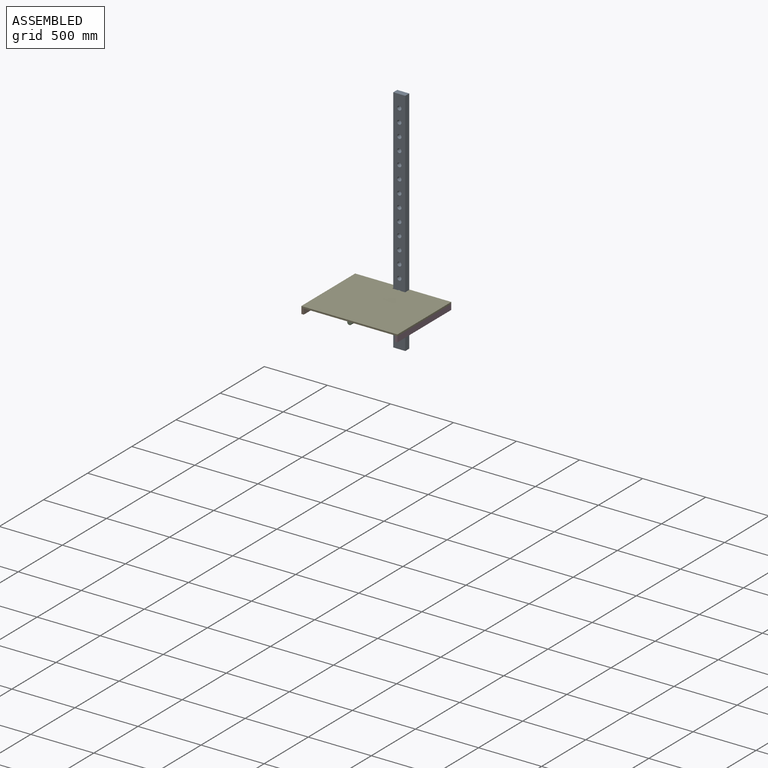
[diagram: assembled view]
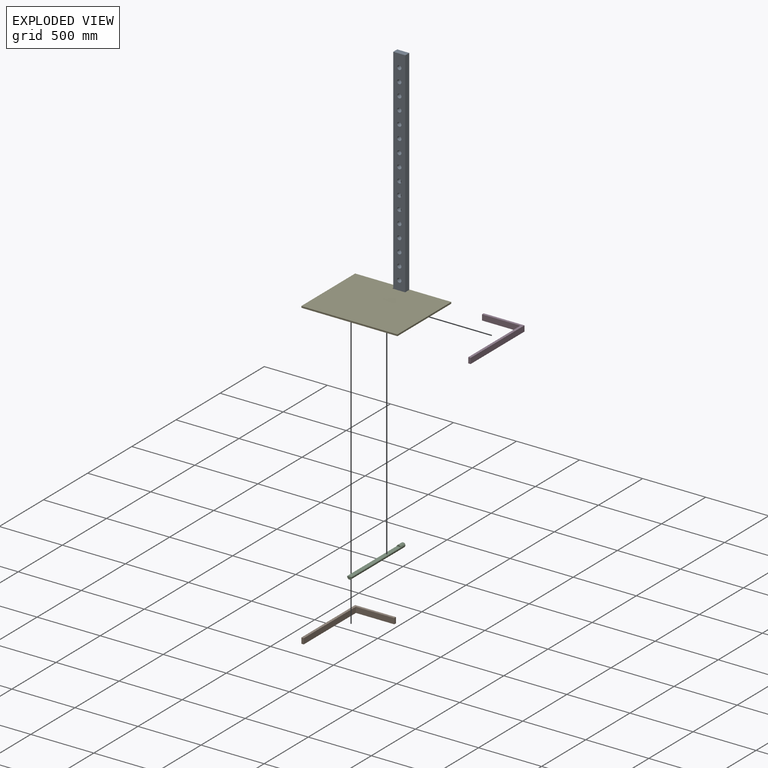
[diagram: exploded view]
GUIDED TOUR — MATED ASSEMBLY (Onshape document 30f6761c4bdb705095dee344, AutoMate assembly 30f6761c4bdb705095dee344_776e1c1512a23b6805736637_3fd992d2d86d7fd99f0343cf_default)

This assembly has 5 components, labeled P0..P4 below (a component is one placed occurrence of a part; the same part can appear more than once), held together by 11 mates. A mate is a constraint between two components; its type names the relative motion it leaves free:
  CYLINDRICAL — leaves both rotation about and translation along the listed axis free,
  PLANAR — leaves sliding in the plane through the listed point (normal = the listed direction) and rotation about that normal free.
Axis/direction vectors are unit vectors and 'through' points are millimeter coordinates, both in the assembly's world frame.

MATES
  1. PLANAR "Planar 2": P2 <-> P4, direction (0.000, 1.000, 0.000) through (-940.02, 203.75, 541.32) mm
  2. PLANAR "Planar 8": P4 <-> P1, direction (0.000, 0.000, -1.000) through (-940.02, -104.19, 546.08) mm
  3. PLANAR "Planar 11": P4 <-> P3, direction (1.000, 0.000, 0.000) through (-559.02, -101.05, 552.43) mm
  4. PLANAR "Planar 1": P4 <-> P2, direction (0.000, 0.000, -1.000) through (-940.02, -104.19, 546.08) mm
  5. PLANAR "Planar 4": P2 <-> P0, direction (0.000, 1.000, 0.000) through (-940.02, 203.75, 541.32) mm
  6. PLANAR "Planar 6": P0 <-> P1, direction (0.000, 1.000, 0.000) through (-940.02, 203.75, 947.72) mm
  7. PLANAR "Planar 10": P3 <-> P0, direction (0.000, 1.000, 0.000) through (-720.95, 203.75, 523.86) mm
  8. CYLINDRICAL "Cylindrical 1": P2 <-> P0, axis (0.000, 1.000, 0.000) through (-940.02, -101.05, 541.32) mm
  9. PLANAR "Planar 12": P1 <-> P4, direction (-1.000, 0.000, 0.000) through (-1321.02, -101.05, 523.86) mm
  10. PLANAR "Planar 5": P0 <-> P4, direction (-1.000, 0.000, 0.000) through (-987.65, 181.52, 1049.32) mm
  11. PLANAR "Planar 9": P3 <-> P4, direction (0.000, 0.000, 1.000) through (-622.52, -2.63, 546.08) mm

ASSEMBLY ORDER
  1. P4 — the base component [order verified]
  2. P2 [order verified]
  3. P0 [order verified]
  4. P1 [order verified]
  5. P3 [order verified]
Order-tag legend:
  [order verified] — this step's position reverses a verified removal order: the component was checked to insert without passing through the ones already placed.

Of the 5 components, 1 carries the full construction recipe — the FeatureScript program that regenerates the part's solid from scratch; the rest are supplied as boundary geometry only.
Each toured component is shown spotlighted twice — in the assembled view, then in the exploded view, where a leader line traces a displaced component back to its assembled socket (saturated green if recipe-attached, orange if geometry-only; every other component desaturated gray) — followed by its recipe or geometry summary and the mates that hold it.
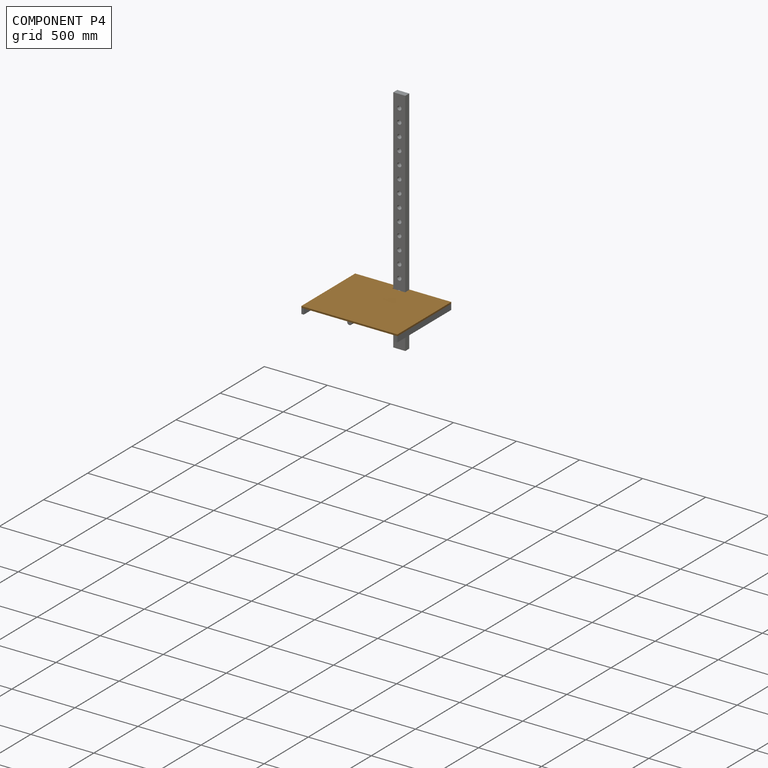
[diagram: component P4 — assembled]
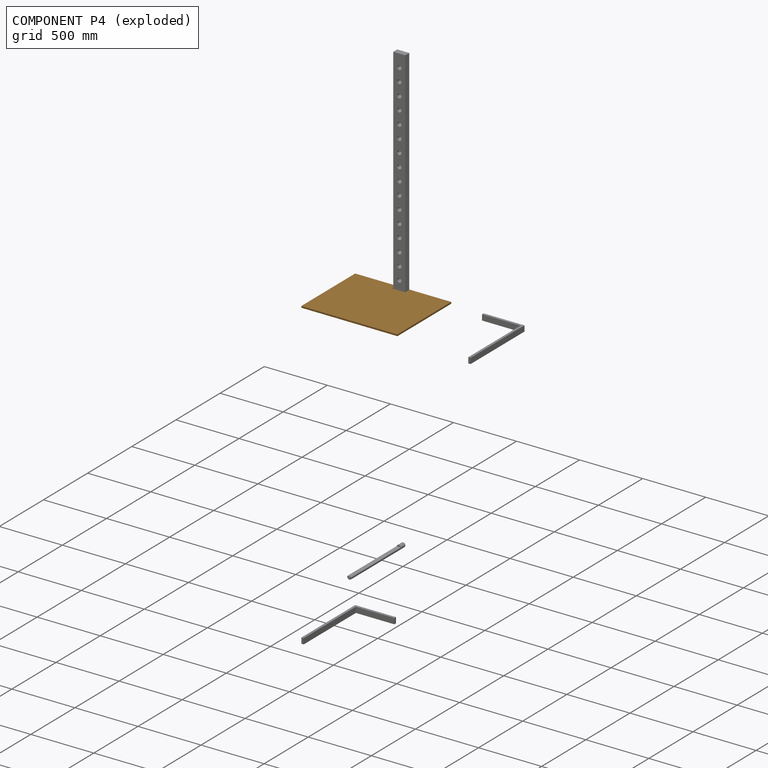
[diagram: component P4 — exploded]
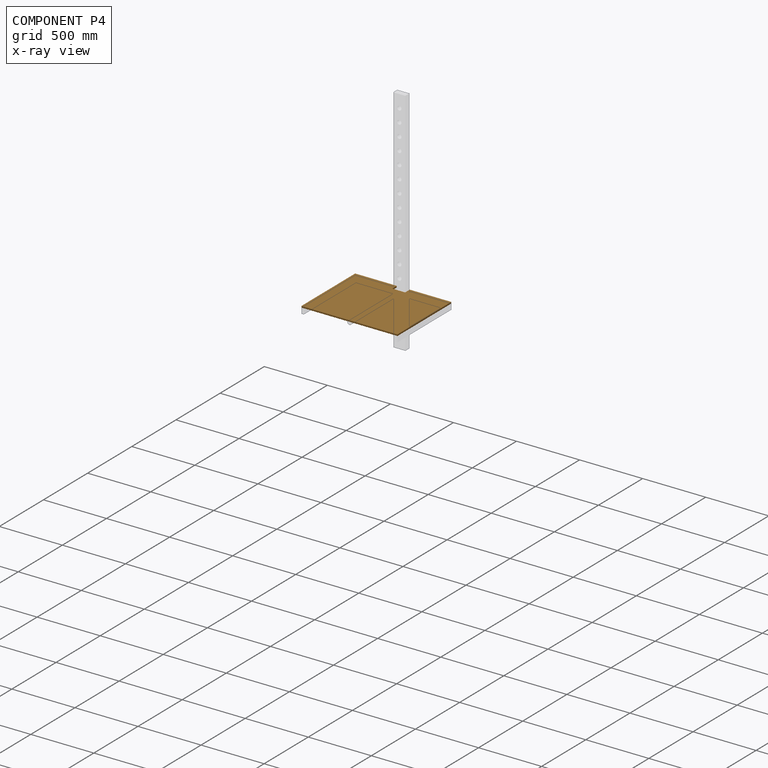
[diagram: component P4 — x-ray view]
COMPONENT P4 — geometry summary (no construction recipe available for this part):
  bounding box: 762.0 x 609.6 x 12.7 mm
  B-rep topology: 1 solid, 10 faces, 48 edges
  volume: 5833795 mm^3 (99% of its bounding box)
  symmetry: 2-fold rotationally symmetric about the y axis; mirror-symmetric across its x mid-plane, z mid-plane
Held by: PLANAR mate "Planar 2" to P2; PLANAR mate "Planar 8" to P1; PLANAR mate "Planar 11" to P3; PLANAR mate "Planar 1" to P2; PLANAR mate "Planar 12" to P1; PLANAR mate "Planar 5" to P0; PLANAR mate "Planar 9" to P3.
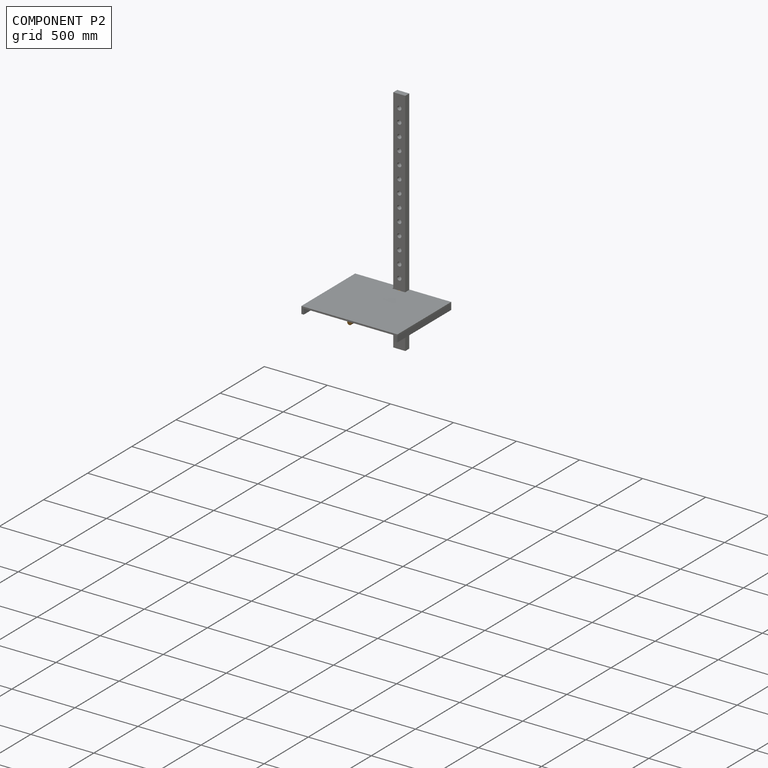
[diagram: component P2 — assembled]
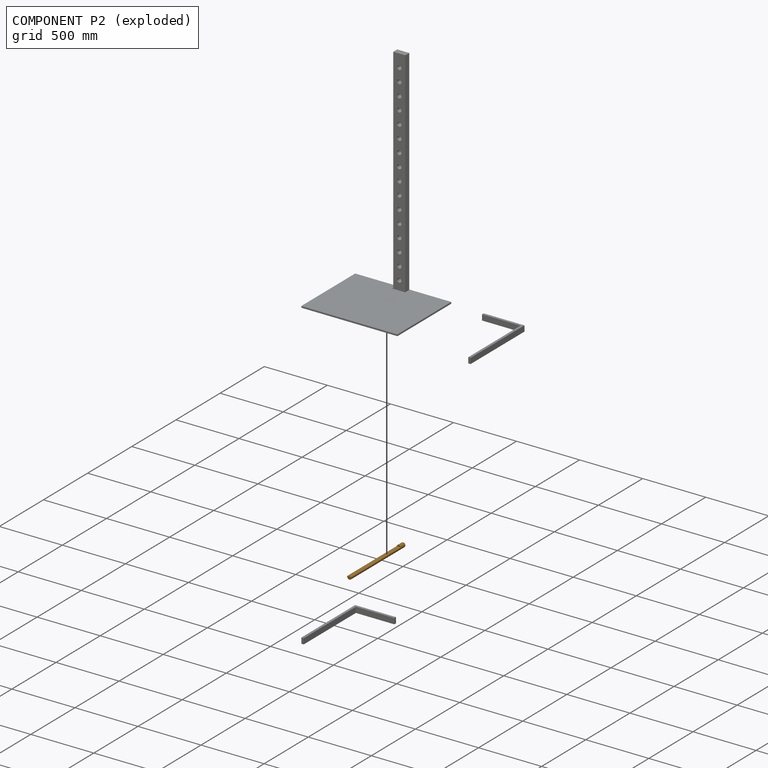
[diagram: component P2 — exploded]
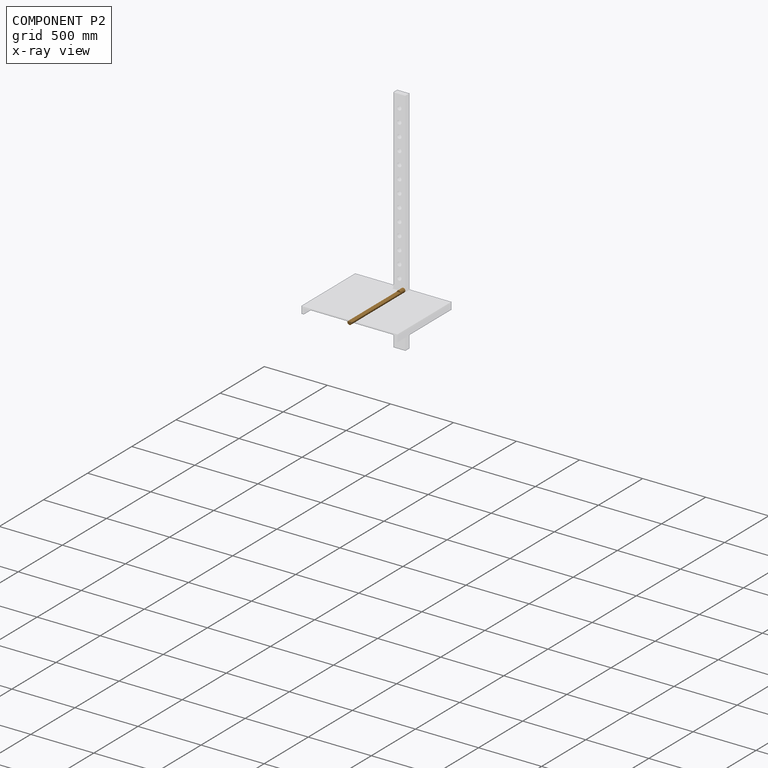
[diagram: component P2 — x-ray view]
COMPONENT P2 — geometry summary (no construction recipe available for this part):
  bounding box: 609.6 x 34.9 x 34.9 mm
  B-rep topology: 1 solid, 5 faces, 18 edges
  volume: 408110 mm^3 (55% of its bounding box)
  symmetry: mirror-symmetric across its x mid-plane
Held by: PLANAR mate "Planar 2" to P4; PLANAR mate "Planar 1" to P4; PLANAR mate "Planar 4" to P0; CYLINDRICAL mate "Cylindrical 1" to P0.
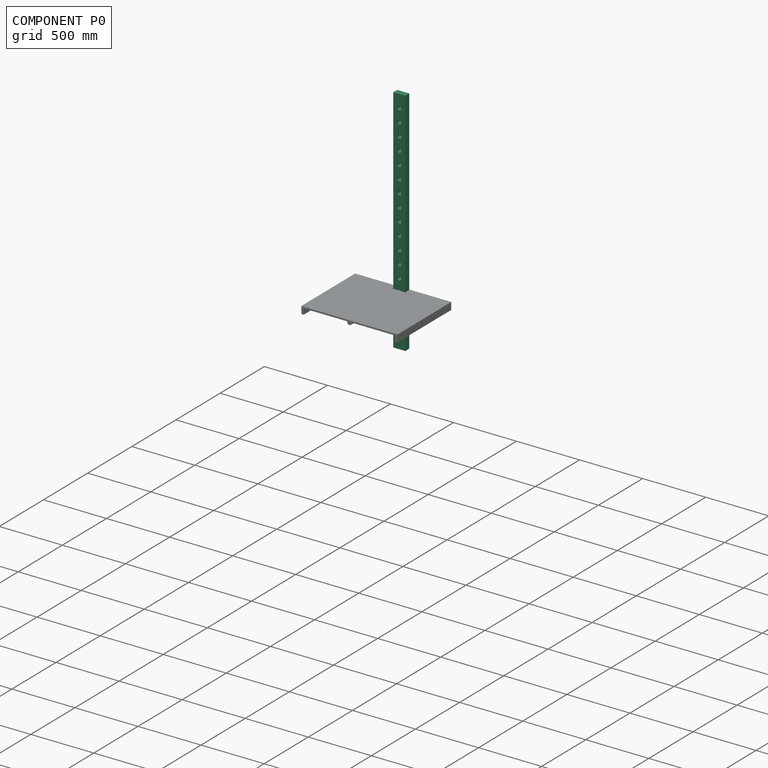
[diagram: component P0 — assembled]
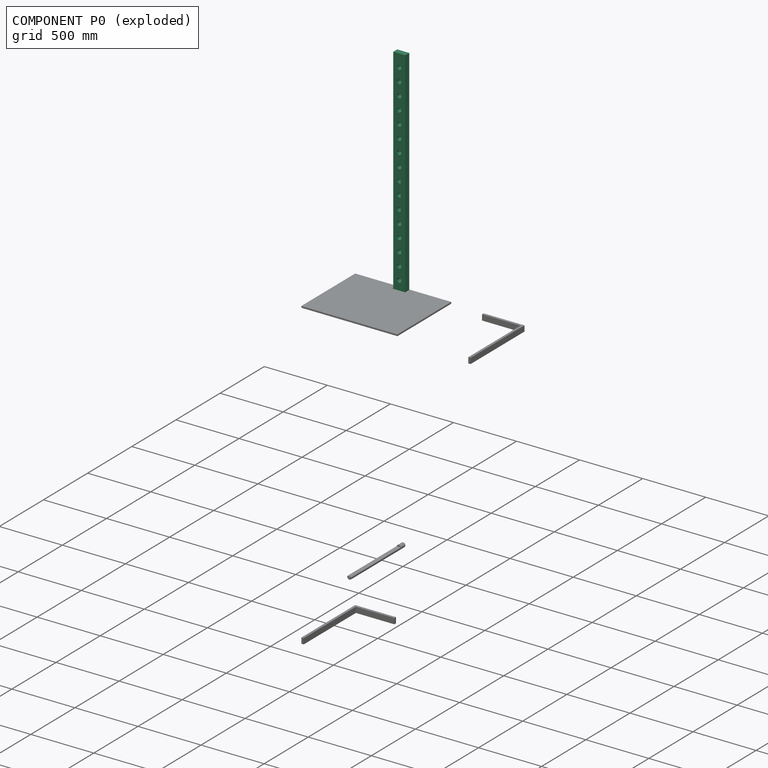
[diagram: component P0 — exploded]
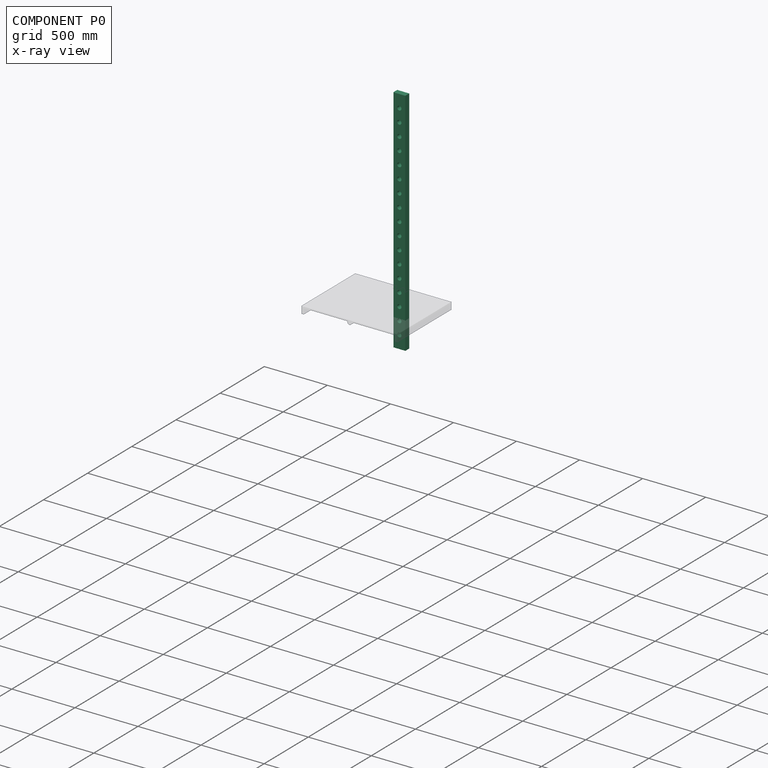
[diagram: component P0 — x-ray view]
COMPONENT P0 — recipe-attached (CADFS 00497379, mesh-verified: the recipe's output STEP matches this component's geometry to below the mesh-comparison resolution (tessellation chordal tolerance ~2.75 mm)).
Held by: PLANAR mate "Planar 4" to P2; PLANAR mate "Planar 6" to P1; PLANAR mate "Planar 10" to P3; CYLINDRICAL mate "Cylindrical 1" to P2; PLANAR mate "Planar 5" to P4.
Construction recipe (FeatureScript — the CAD program that rebuilds this solid; sketch coordinates are in the units given by the * unit suffixes, e.g. mm):

FeatureScript 1511;
import(path : "onshape/std/geometry.fs", version : "1511.0");
import(path : "onshape/std/common.fs", version : "1511.0");
const mm = millimeter;
const VERTEX = EntityType.VERTEX;
const EDGE = EntityType.EDGE;
const FACE = EntityType.FACE;
const BODY = EntityType.BODY;
function v(x, y){return vector(x, y);}
function OD(order){return orderDisambiguation(order);}
function OSD(set){return originalSetDisambiguation(set);}
function TD(topology){return topologyDisambiguation(topology);}
function TDD(query){return trueDependencyDisambiguation(query);}
function sQuery(a, b, c) {return sketchEntityQuery(a, b, c);}

annotation { "Feature Type Name" : "Feature", "Feature Type Description" : "" }
export const myFeature = defineFeature(function(context is Context, id is Id, definition is map)
    precondition{}
    {
        {
            var Q0;
            Q0=qCreatedBy(makeId("Front.planeOp"),FACE);
            var sketch = newSketch(context, id + "F0", { "sketchPlane" : qUnion([Q0])});
            skLineSegment(sketch, "E0.bottom", {"start": v(0, 0) * mm, "end": v(95.25, 0) * mm});
            skLineSegment(sketch, "E0.top", {"start": v(0, 1828.8) * mm, "end": v(95.25, 1828.8) * mm});
            skLineSegment(sketch, "E0.left", {"start": v(0, 0) * mm, "end": v(0, 1828.8) * mm});
            skLineSegment(sketch, "E0.right", {"start": v(95.25, 0) * mm, "end": v(95.25, 1828.8) * mm});
            skCircle(sketch, "E1", {"center": v(47.63, 101.6) * mm, "radius": 16.67 * mm});
            skCircle(sketch, "E2.0.1.0", {"center": v(47.63, 203.2) * mm, "radius": 16.67 * mm});
            skCircle(sketch, "E2.0.2.0", {"center": v(47.63, 304.8) * mm, "radius": 16.67 * mm});
            skCircle(sketch, "E2.0.3.0", {"center": v(47.63, 406.4) * mm, "radius": 16.67 * mm});
            skCircle(sketch, "E2.0.4.0", {"center": v(47.63, 508) * mm, "radius": 16.67 * mm});
            skCircle(sketch, "E2.0.5.0", {"center": v(47.63, 609.6) * mm, "radius": 16.67 * mm});
            skCircle(sketch, "E2.0.6.0", {"center": v(47.63, 711.2) * mm, "radius": 16.67 * mm});
            skCircle(sketch, "E2.0.7.0", {"center": v(47.63, 812.8) * mm, "radius": 16.67 * mm});
            skCircle(sketch, "E2.0.8.0", {"center": v(47.63, 914.4) * mm, "radius": 16.67 * mm});
            skCircle(sketch, "E2.0.9.0", {"center": v(47.63, 1016) * mm, "radius": 16.67 * mm});
            skCircle(sketch, "E2.0.10.0", {"center": v(47.63, 1117.6) * mm, "radius": 16.67 * mm});
            skCircle(sketch, "E2.0.11.0", {"center": v(47.63, 1219.2) * mm, "radius": 16.67 * mm});
            skCircle(sketch, "E2.0.12.0", {"center": v(47.63, 1320.8) * mm, "radius": 16.67 * mm});
            skCircle(sketch, "E2.0.13.0", {"center": v(47.63, 1422.4) * mm, "radius": 16.67 * mm});
            skCircle(sketch, "E2.0.14.0", {"center": v(47.63, 1524) * mm, "radius": 16.67 * mm});
            skCircle(sketch, "E2.0.15.0", {"center": v(47.63, 1625.6) * mm, "radius": 16.67 * mm});
            skCircle(sketch, "E2.0.16.0", {"center": v(47.63, 1727.2) * mm, "radius": 16.67 * mm});
            skLineSegment(sketch, "E2.direction1", {"start": v(47.63, 101.6) * mm, "end": v(73.03, 101.6) * mm, "construction": true});
            skLineSegment(sketch, "E2.direction2", {"start": v(47.63, 101.6) * mm, "end": v(47.63, 203.2) * mm, "construction": true});
            skSolve(sketch);
        }
        {
            var Q0;
            Q0 = qSketchRegion(id + "F0", true);
            extrude(context, id + "F1", {"entities" : qUnion([Q0]), "depth" : 44.45 * mm});
        }
    });
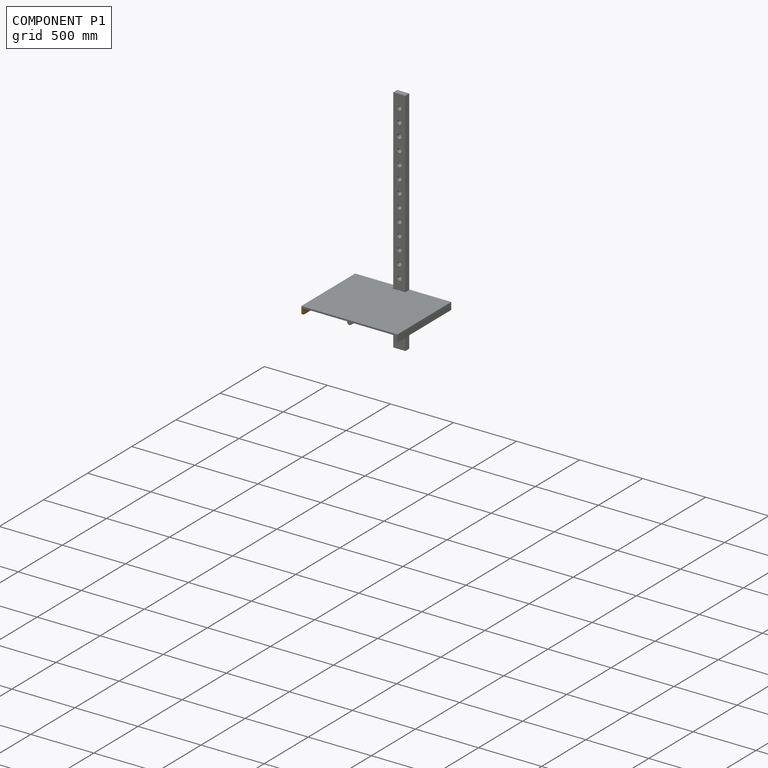
[diagram: component P1 — assembled]
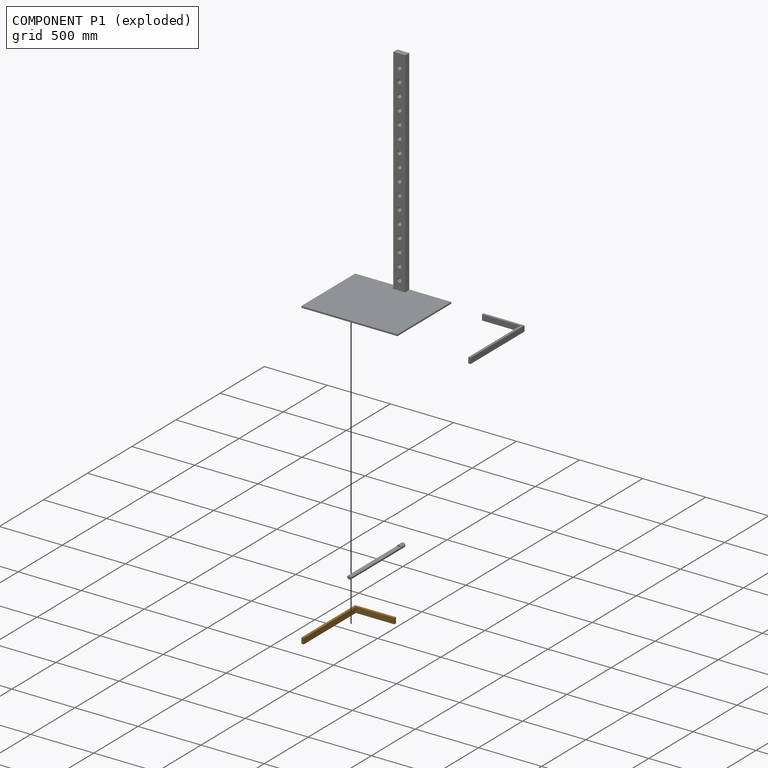
[diagram: component P1 — exploded]
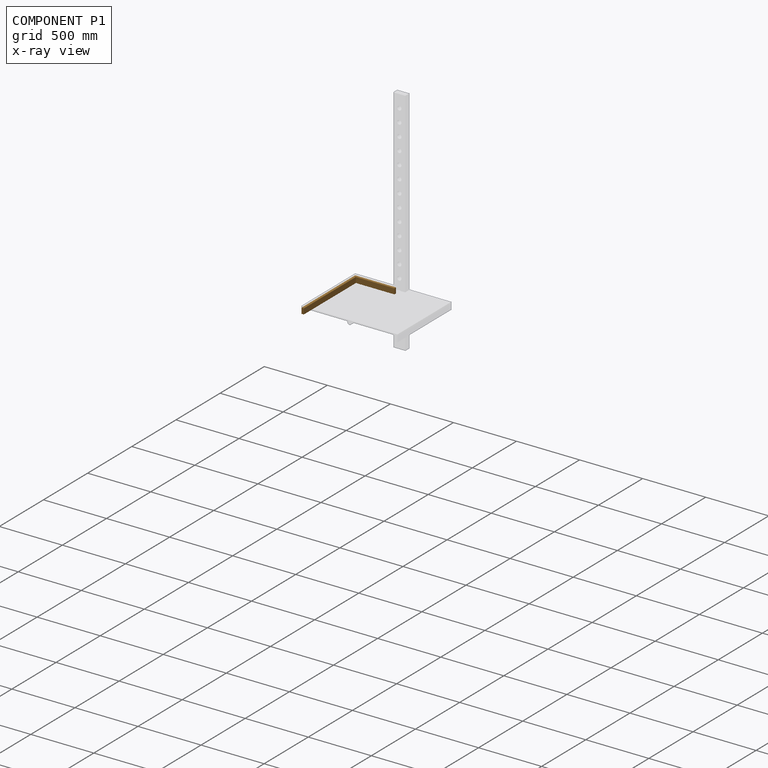
[diagram: component P1 — x-ray view]
COMPONENT P1 — geometry summary (no construction recipe available for this part):
  bounding box: 609.6 x 323.9 x 44.5 mm
  B-rep topology: 1 solid, 8 faces, 36 edges
  volume: 774289 mm^3 (9% of its bounding box)
  symmetry: mirror-symmetric across its z mid-plane
Held by: PLANAR mate "Planar 8" to P4; PLANAR mate "Planar 6" to P0; PLANAR mate "Planar 12" to P4.
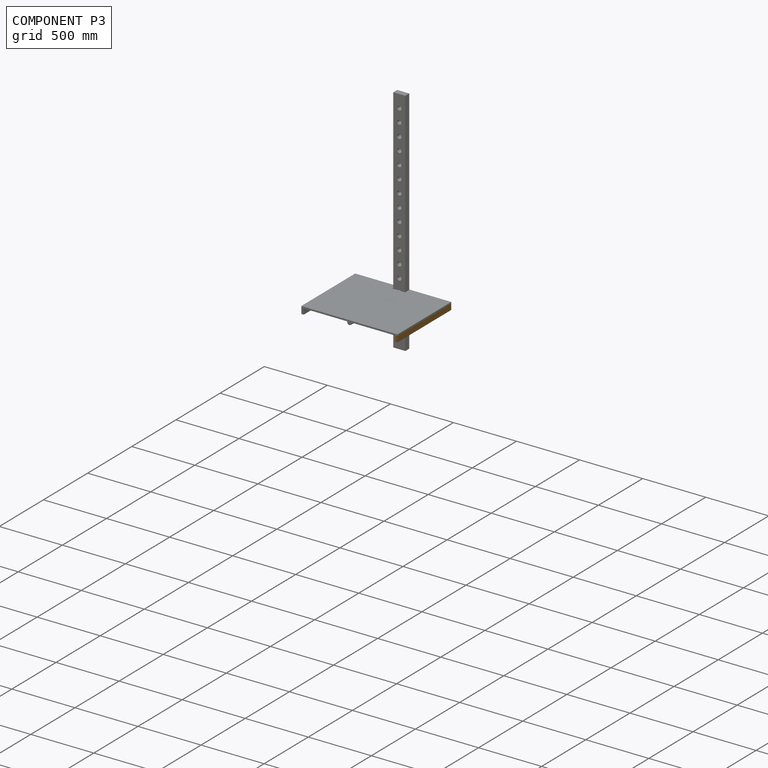
[diagram: component P3 — assembled]
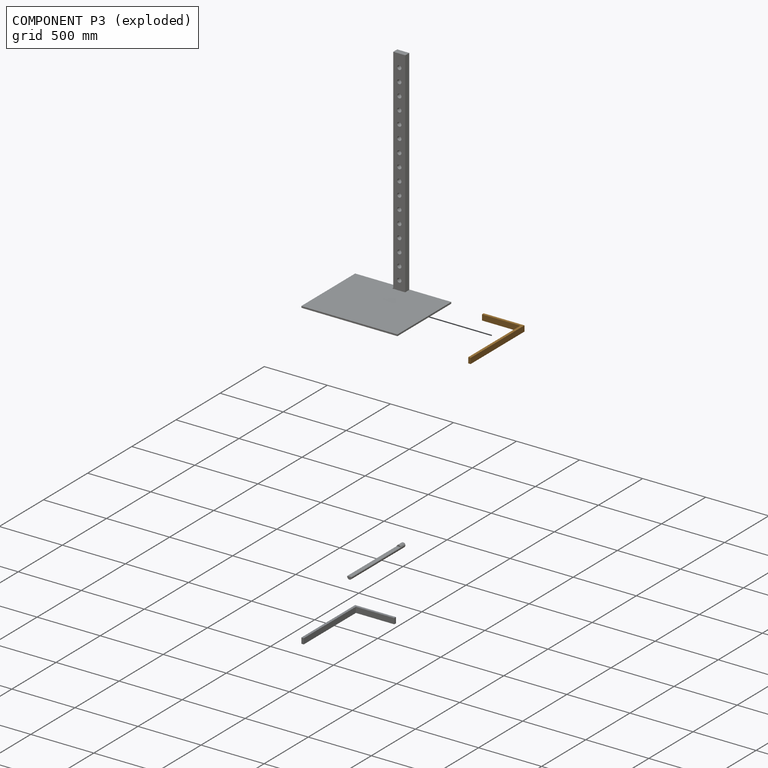
[diagram: component P3 — exploded]
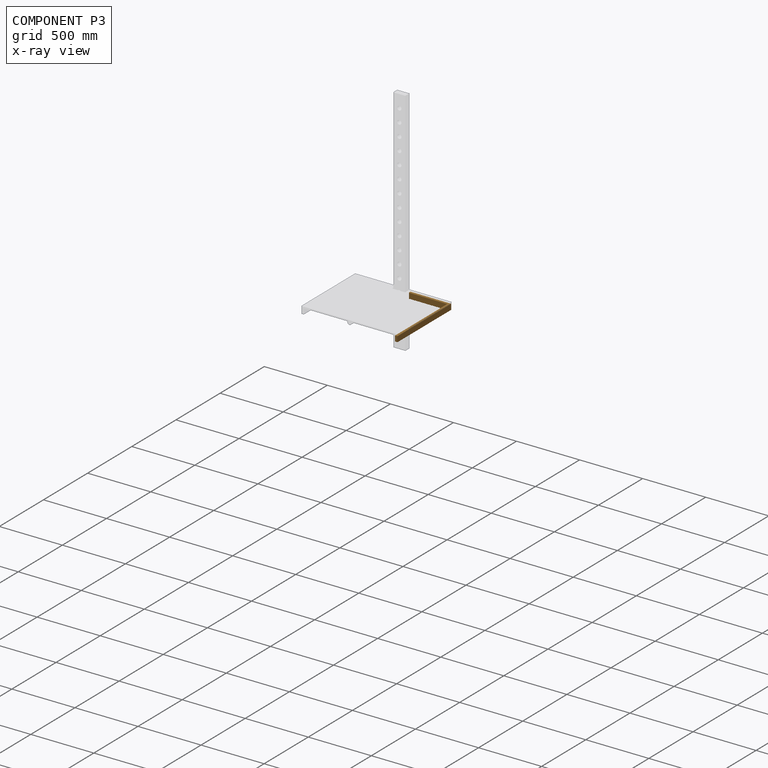
[diagram: component P3 — x-ray view]
COMPONENT P3 — geometry summary (no construction recipe available for this part):
  bounding box: 609.6 x 323.9 x 44.5 mm
  B-rep topology: 1 solid, 8 faces, 36 edges
  volume: 774289 mm^3 (9% of its bounding box)
  symmetry: mirror-symmetric across its z mid-plane
Held by: PLANAR mate "Planar 11" to P4; PLANAR mate "Planar 10" to P0; PLANAR mate "Planar 9" to P4.
PROVENANCE & LICENSES
Assembly (occurrences, transforms, mates, per-part STEP geometry): AutoMate dataset, Zenodo record 7776208, CC0.
Construction recipes: CADFS (HuggingFace VladPyatov/CADFS, CC-BY-4.0, layered over the ABC dataset), FeatureScript reconstruction programs keyed by ABC model id.
Join: ABC meta listings map ABC model id -> Onshape documentId; within a shared document, parts are matched by geometric signature (bounding-box dims + volume at 0.1% relative tolerance, exact B-rep face/solid counts).
Verification: 1 of this assembly's 5 components carries a recipe attachment, and every attachment is mesh-verified: the CADFS STEP and the AutoMate member STEP were compared as meshes in their shared local frame (symmetric sampled-point-to-mesh distance); worst across the 1 attachment: below the mesh-comparison resolution (tessellation chordal tolerance ~2.75 mm) on a 1832 mm part.
Renders: orthographic iso camera (az 35 / el 25); the floor grid conveys scale (grid pitch printed in each image; no ruler). In the exploded view each component is displaced by its stored offset vector: the offsets alone carry the explosion direction (mate normal/axis signs are not orientation cues and do not encode it), and separation distances are assigned per mate-chain, not proportionally to assembly-order depth.
